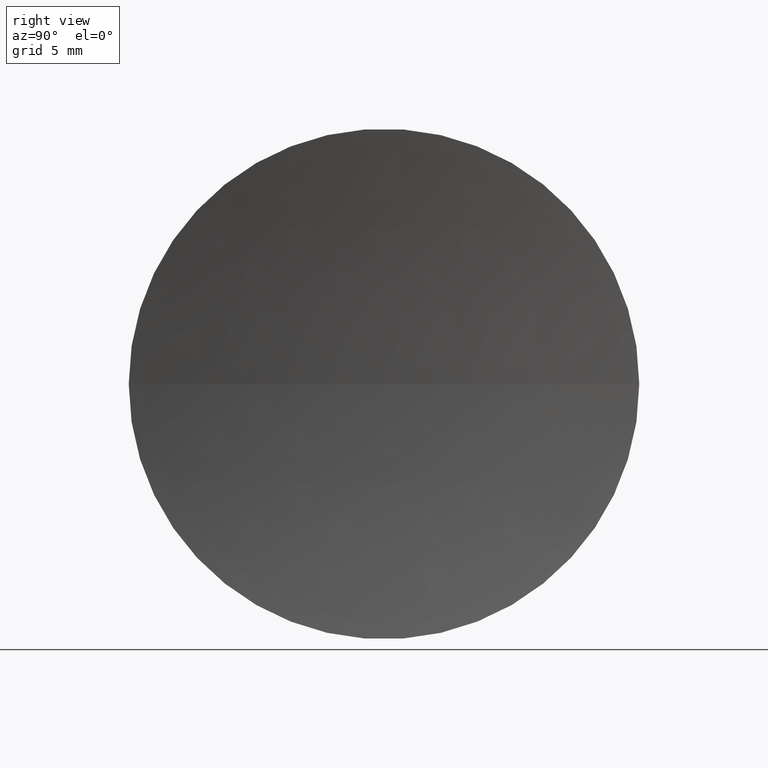
[diagram: clean part render]
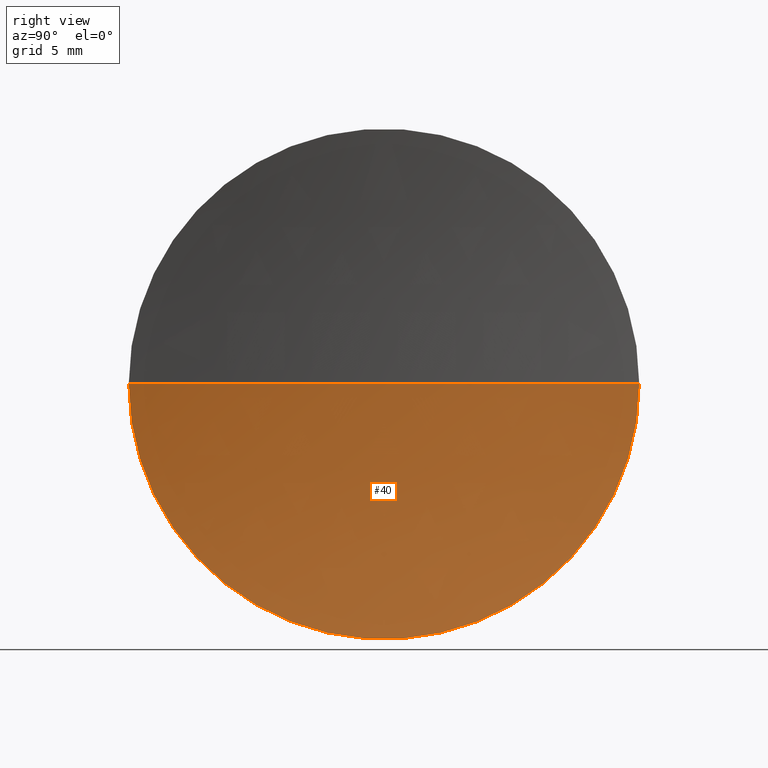
[diagram: same view with one face highlighted and labeled with its STEP entity id]
A machine part, right view. The second image highlights one B-rep face of the part: STEP entity #40.
In plain terms, the highlighted spherical surface has radius 64.2 mm.
Its self-contained STEP definition (entity closure, byte-faithful):
#2 = FACE_OUTER_BOUND ( 'NONE', #182, .T. ) ;
#11 = EDGE_CURVE ( 'NONE', #98, #24, #36, .T. ) ;
#14 = AXIS2_PLACEMENT_3D ( 'NONE', #173, #75, #93 ) ;
#19 = AXIS2_PLACEMENT_3D ( 'NONE', #51, #143, #188 ) ;
#22 = CARTESIAN_POINT ( 'NONE',  ( 128.6408507947504100, 77.71684047094034000, 0.0000000000000000000 ) ) ;
#24 = VERTEX_POINT ( 'NONE', #88 ) ;
#25 = EDGE_CURVE ( 'NONE', #98, #27, #192, .T. ) ;
#27 = VERTEX_POINT ( 'NONE', #45 ) ;
#31 = ORIENTED_EDGE ( 'NONE', *, *, #11, .T. ) ;
#35 = CARTESIAN_POINT ( 'NONE',  ( 128.6408507947504300, 65.21684047094034000, 0.0000000000000000000 ) ) ;
#36 = CIRCLE ( 'NONE', #115, 64.20000000000000300 ) ;
#40 = ADVANCED_FACE ( 'NONE', ( #2 ), #141, .F. ) ;
#45 = CARTESIAN_POINT ( 'NONE',  ( 128.6408507947504600, 52.71684047094027600, -1.530808498934191500E-015 ) ) ;
#46 = DIRECTION ( 'NONE',  ( 1.000000000000000000, 0.0000000000000000000, 0.0000000000000000000 ) ) ;
#51 = CARTESIAN_POINT ( 'NONE',  ( 191.6121934833099700, 65.21684047094032600, 0.0000000000000000000 ) ) ;
#57 = EDGE_CURVE ( 'NONE', #27, #24, #68, .T. ) ;
#64 = DIRECTION ( 'NONE',  ( 0.0000000000000000000, -0.0000000000000000000, 1.000000000000000000 ) ) ;
#68 = CIRCLE ( 'NONE', #19, 64.19999999999998900 ) ;
#75 = DIRECTION ( 'NONE',  ( 0.0000000000000000000, 0.0000000000000000000, -1.000000000000000000 ) ) ;
#88 = CARTESIAN_POINT ( 'NONE',  ( 127.4121934833099500, 65.21684047094028400, 0.0000000000000000000 ) ) ;
#93 = DIRECTION ( 'NONE',  ( -8.646596764993431500E-016, 1.000000000000000000, 0.0000000000000000000 ) ) ;
#98 = VERTEX_POINT ( 'NONE', #22 ) ;
#115 = AXIS2_PLACEMENT_3D ( 'NONE', #169, #64, #46 ) ;
#141 = SPHERICAL_SURFACE ( 'NONE', #14, 64.20000000000000300 ) ;
#143 = DIRECTION ( 'NONE',  ( -8.496118506040342700E-032, 1.224646799147353200E-016, -1.000000000000000000 ) ) ;
#148 = ORIENTED_EDGE ( 'NONE', *, *, #57, .F. ) ;
#156 = DIRECTION ( 'NONE',  ( 0.0000000000000000000, -1.000000000000000000, 0.0000000000000000000 ) ) ;
#169 = CARTESIAN_POINT ( 'NONE',  ( 191.6121934833099700, 65.21684047094032600, 0.0000000000000000000 ) ) ;
#170 = AXIS2_PLACEMENT_3D ( 'NONE', #35, #185, #156 ) ;
#173 = CARTESIAN_POINT ( 'NONE',  ( 191.6121934833099700, 65.21684047094032600, 0.0000000000000000000 ) ) ;
#178 = ORIENTED_EDGE ( 'NONE', *, *, #25, .F. ) ;
#182 = EDGE_LOOP ( 'NONE', ( #148, #178, #31 ) ) ;
#185 = DIRECTION ( 'NONE',  ( -1.000000000000000000, -6.937607244762875000E-016, -0.0000000000000000000 ) ) ;
#188 = DIRECTION ( 'NONE',  ( 0.0000000000000000000, 1.000000000000000000, 1.224646799147353700E-016 ) ) ;
#192 = CIRCLE ( 'NONE', #170, 12.49999999999999100 ) ;